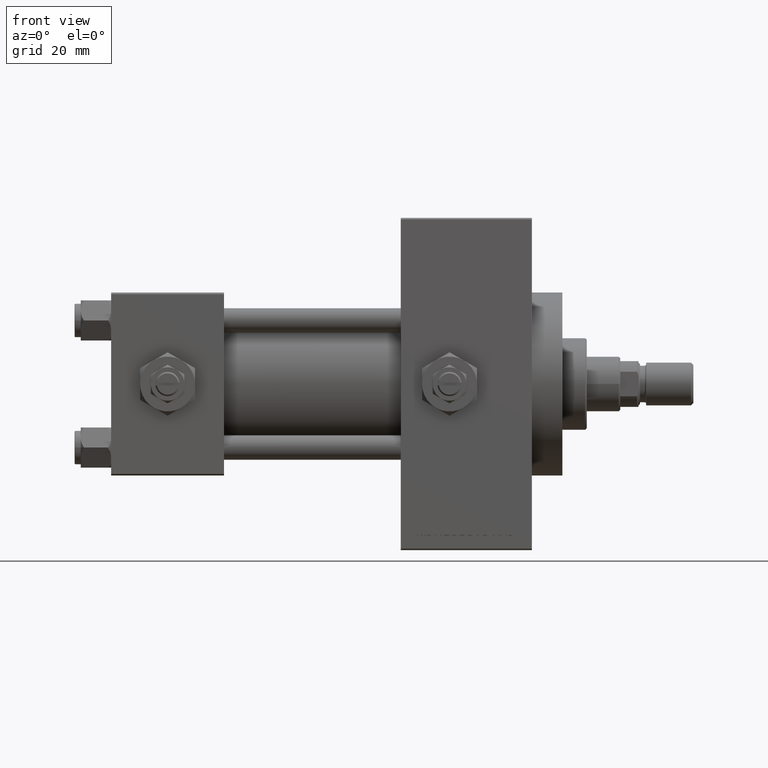
[diagram: clean part render]
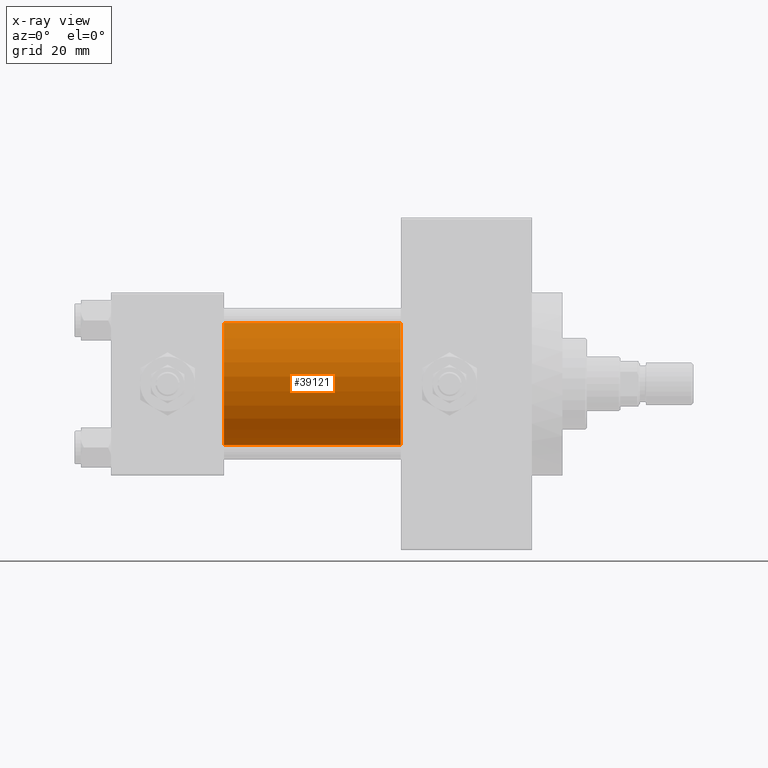
[diagram: x-ray — body ghosted, one internal face saturated and labeled with its STEP entity id]
A machine part, front view, then the same camera in x-ray: the body is ghosted and one INTERNAL B-rep face — a face not visible from any outside direction — is saturated and labeled: STEP entity #39121.
In plain terms, the highlighted cylindrical surface (partial cylindrical patch) has radius 20 mm, axis along (-1, -0, -0).
Its self-contained STEP definition (entity closure, byte-faithful):
#1102 = DIRECTION ( 'NONE',  ( 1.000000000000000000, 0.000000000000000000, 0.000000000000000000 ) ) ;
#1877 = VERTEX_POINT ( 'NONE', #48330 ) ;
#4597 = ORIENTED_EDGE ( 'NONE', *, *, #32188, .T. ) ;
#6080 = CARTESIAN_POINT ( 'NONE',  ( 37.00000000000000000, -1.527916156705046464E-16, -20.00000000000000000 ) ) ;
#6522 = AXIS2_PLACEMENT_3D ( 'NONE', #31548, #1102, #16696 ) ;
#7768 = VECTOR ( 'NONE', #13907, 1000.000000000000000 ) ;
#8093 = CARTESIAN_POINT ( 'NONE',  ( 95.00000000000000000, -1.527916156705046464E-16, -20.00000000000000000 ) ) ;
#9863 = EDGE_CURVE ( 'NONE', #1877, #11640, #27204, .T. ) ;
#11640 = VERTEX_POINT ( 'NONE', #6080 ) ;
#13845 = VERTEX_POINT ( 'NONE', #22228 ) ;
#13907 = DIRECTION ( 'NONE',  ( -1.000000000000000000, -0.000000000000000000, -0.000000000000000000 ) ) ;
#14162 = CARTESIAN_POINT ( 'NONE',  ( 95.00000000000000000, -2.602085213965210642E-15, 20.00000000000000000 ) ) ;
#14369 = CARTESIAN_POINT ( 'NONE',  ( 37.00000000000000000, -2.602085213965210642E-15, 0.000000000000000000 ) ) ;
#14752 = AXIS2_PLACEMENT_3D ( 'NONE', #14369, #40548, #29216 ) ;
#16402 = AXIS2_PLACEMENT_3D ( 'NONE', #37622, #26533, #41655 ) ;
#16668 = VERTEX_POINT ( 'NONE', #39389 ) ;
#16696 = DIRECTION ( 'NONE',  ( 0.000000000000000000, 0.000000000000000000, -1.000000000000000000 ) ) ;
#18081 = ORIENTED_EDGE ( 'NONE', *, *, #18202, .F. ) ;
#18202 = EDGE_CURVE ( 'NONE', #16668, #13845, #36802, .T. ) ;
#20649 = EDGE_LOOP ( 'NONE', ( #4597, #39016, #48263, #18081 ) ) ;
#22228 = CARTESIAN_POINT ( 'NONE',  ( 37.00000000000000000, -2.602085213965210642E-15, 20.00000000000000000 ) ) ;
#22273 = CYLINDRICAL_SURFACE ( 'NONE', #16402, 20.00000000000000000 ) ;
#26533 = DIRECTION ( 'NONE',  ( -1.000000000000000000, -0.000000000000000000, -0.000000000000000000 ) ) ;
#27204 = LINE ( 'NONE', #8093, #29302 ) ;
#29216 = DIRECTION ( 'NONE',  ( 0.000000000000000000, 0.000000000000000000, -1.000000000000000000 ) ) ;
#29302 = VECTOR ( 'NONE', #30727, 1000.000000000000000 ) ;
#29827 = CIRCLE ( 'NONE', #6522, 20.00000000000000000 ) ;
#30727 = DIRECTION ( 'NONE',  ( -1.000000000000000000, -0.000000000000000000, -0.000000000000000000 ) ) ;
#31548 = CARTESIAN_POINT ( 'NONE',  ( 95.00000000000000000, -2.602085213965210642E-15, 0.000000000000000000 ) ) ;
#32188 = EDGE_CURVE ( 'NONE', #16668, #1877, #29827, .T. ) ;
#36802 = LINE ( 'NONE', #14162, #7768 ) ;
#37622 = CARTESIAN_POINT ( 'NONE',  ( 95.00000000000000000, -2.602085213965210642E-15, 0.000000000000000000 ) ) ;
#38363 = EDGE_CURVE ( 'NONE', #13845, #11640, #38846, .T. ) ;
#38846 = CIRCLE ( 'NONE', #14752, 20.00000000000000000 ) ;
#39016 = ORIENTED_EDGE ( 'NONE', *, *, #9863, .T. ) ;
#39121 = ADVANCED_FACE ( 'NONE', ( #49441 ), #22273, .F. ) ;
#39389 = CARTESIAN_POINT ( 'NONE',  ( 95.00000000000000000, -2.602085213965210642E-15, 20.00000000000000000 ) ) ;
#40548 = DIRECTION ( 'NONE',  ( 1.000000000000000000, 0.000000000000000000, 0.000000000000000000 ) ) ;
#41655 = DIRECTION ( 'NONE',  ( 0.000000000000000000, 0.000000000000000000, 1.000000000000000000 ) ) ;
#48263 = ORIENTED_EDGE ( 'NONE', *, *, #38363, .F. ) ;
#48330 = CARTESIAN_POINT ( 'NONE',  ( 95.00000000000000000, -1.527916156705046464E-16, -20.00000000000000000 ) ) ;
#49441 = FACE_OUTER_BOUND ( 'NONE', #20649, .T. ) ;